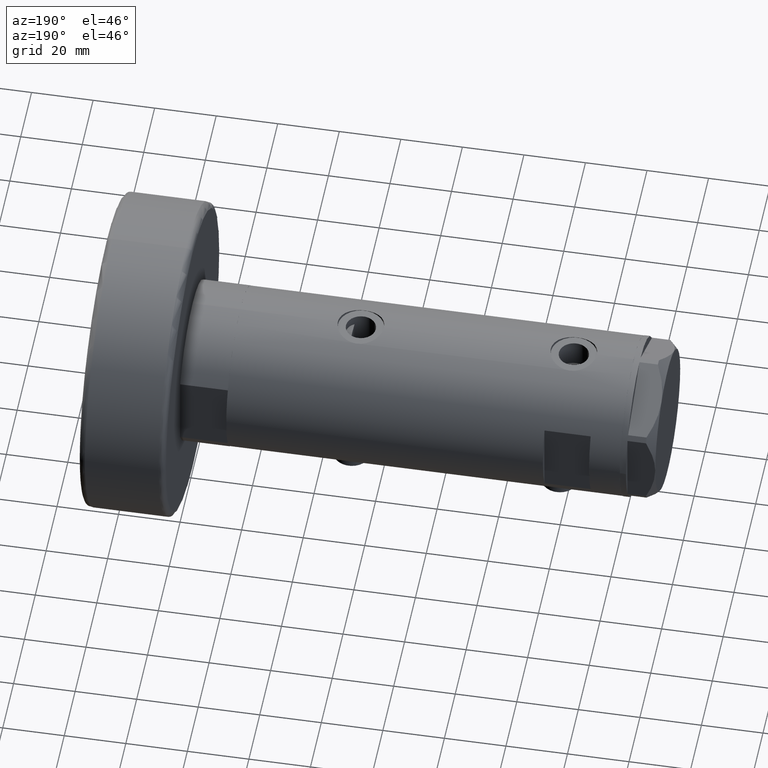
[diagram: clean part render]
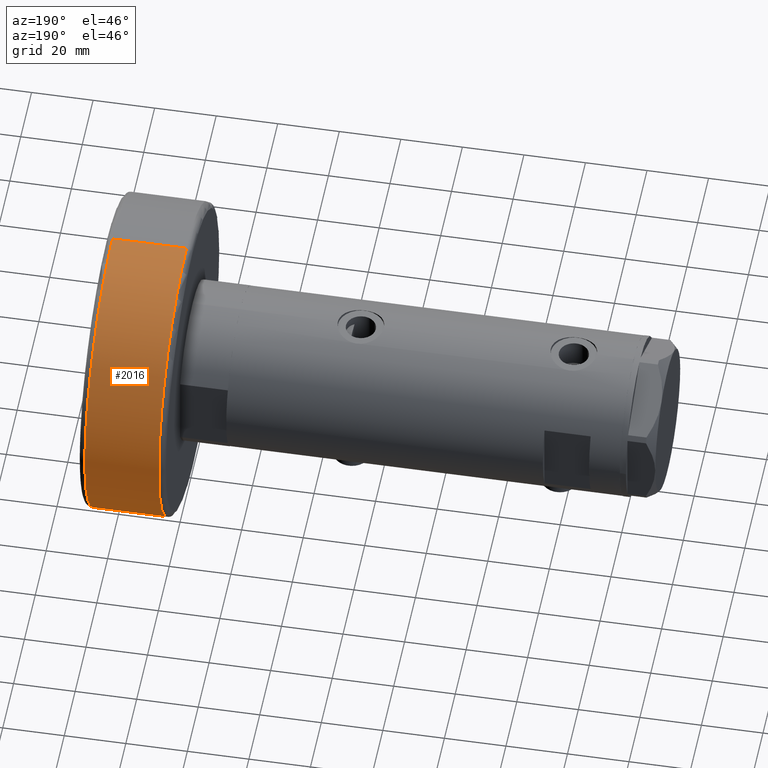
[diagram: same view with one face highlighted and labeled with its STEP entity id]
A machine part, auxiliary view. The second image highlights one B-rep face of the part: STEP entity #2016.
In plain terms, the highlighted cylindrical surface (partial cylindrical patch) has radius 51 mm, axis along (-1, -0, 0).
Its self-contained STEP definition (entity closure, byte-faithful):
#250 = CARTESIAN_POINT ( 'NONE',  ( 50.99999999999999289, 6.245698675651499656E-15, 1.999999999999998224 ) ) ;
#545 = EDGE_LOOP ( 'NONE', ( #3856, #3000, #2194, #4778 ) ) ;
#610 = DIRECTION ( 'NONE',  ( -0.000000000000000000, -0.000000000000000000, -1.000000000000000000 ) ) ;
#687 = CIRCLE ( 'NONE', #3062, 50.99999999999999289 ) ;
#852 = CYLINDRICAL_SURFACE ( 'NONE', #3795, 50.99999999999999289 ) ;
#881 = VERTEX_POINT ( 'NONE', #5192 ) ;
#1078 = CARTESIAN_POINT ( 'NONE',  ( 50.99999999999999289, 6.245698675651499656E-15, 28.00000000000000000 ) ) ;
#1227 = DIRECTION ( 'NONE',  ( -0.000000000000000000, -0.000000000000000000, -1.000000000000000000 ) ) ;
#1390 = AXIS2_PLACEMENT_3D ( 'NONE', #3433, #610, #5072 ) ;
#1574 = EDGE_CURVE ( 'NONE', #2254, #1821, #3229, .T. ) ;
#1597 = CARTESIAN_POINT ( 'NONE',  ( 0.000000000000000000, 0.000000000000000000, 28.00000000000000000 ) ) ;
#1729 = CIRCLE ( 'NONE', #1390, 50.99999999999999289 ) ;
#1821 = VERTEX_POINT ( 'NONE', #3023 ) ;
#2016 = ADVANCED_FACE ( 'NONE', ( #4889 ), #852, .T. ) ;
#2194 = ORIENTED_EDGE ( 'NONE', *, *, #3896, .T. ) ;
#2254 = VERTEX_POINT ( 'NONE', #4673 ) ;
#2386 = DIRECTION ( 'NONE',  ( -1.000000000000000000, 0.000000000000000000, 0.000000000000000000 ) ) ;
#2693 = DIRECTION ( 'NONE',  ( -0.000000000000000000, -0.000000000000000000, -1.000000000000000000 ) ) ;
#2880 = DIRECTION ( 'NONE',  ( 0.000000000000000000, 0.000000000000000000, 1.000000000000000000 ) ) ;
#2980 = DIRECTION ( 'NONE',  ( 1.000000000000000000, 0.000000000000000000, 0.000000000000000000 ) ) ;
#3000 = ORIENTED_EDGE ( 'NONE', *, *, #4261, .T. ) ;
#3023 = CARTESIAN_POINT ( 'NONE',  ( -50.99999999999999289, 0.000000000000000000, 1.999999999999998224 ) ) ;
#3062 = AXIS2_PLACEMENT_3D ( 'NONE', #4078, #2880, #2980 ) ;
#3229 = LINE ( 'NONE', #4853, #3545 ) ;
#3335 = VERTEX_POINT ( 'NONE', #250 ) ;
#3433 = CARTESIAN_POINT ( 'NONE',  ( 0.000000000000000000, 0.000000000000000000, 26.00000000000000355 ) ) ;
#3545 = VECTOR ( 'NONE', #1227, 1000.000000000000000 ) ;
#3621 = DIRECTION ( 'NONE',  ( -0.000000000000000000, -0.000000000000000000, -1.000000000000000000 ) ) ;
#3795 = AXIS2_PLACEMENT_3D ( 'NONE', #1597, #3621, #2386 ) ;
#3856 = ORIENTED_EDGE ( 'NONE', *, *, #5045, .T. ) ;
#3896 = EDGE_CURVE ( 'NONE', #3335, #1821, #687, .T. ) ;
#4078 = CARTESIAN_POINT ( 'NONE',  ( 0.000000000000000000, 0.000000000000000000, 1.999999999999998224 ) ) ;
#4261 = EDGE_CURVE ( 'NONE', #881, #3335, #4715, .T. ) ;
#4673 = CARTESIAN_POINT ( 'NONE',  ( -50.99999999999999289, 0.000000000000000000, 26.00000000000000355 ) ) ;
#4715 = LINE ( 'NONE', #1078, #5108 ) ;
#4778 = ORIENTED_EDGE ( 'NONE', *, *, #1574, .F. ) ;
#4853 = CARTESIAN_POINT ( 'NONE',  ( -50.99999999999999289, 0.000000000000000000, 28.00000000000000000 ) ) ;
#4889 = FACE_OUTER_BOUND ( 'NONE', #545, .T. ) ;
#5045 = EDGE_CURVE ( 'NONE', #2254, #881, #1729, .T. ) ;
#5072 = DIRECTION ( 'NONE',  ( 1.000000000000000000, 0.000000000000000000, 0.000000000000000000 ) ) ;
#5108 = VECTOR ( 'NONE', #2693, 1000.000000000000000 ) ;
#5192 = CARTESIAN_POINT ( 'NONE',  ( 50.99999999999999289, 6.245698675651499656E-15, 26.00000000000000355 ) ) ;